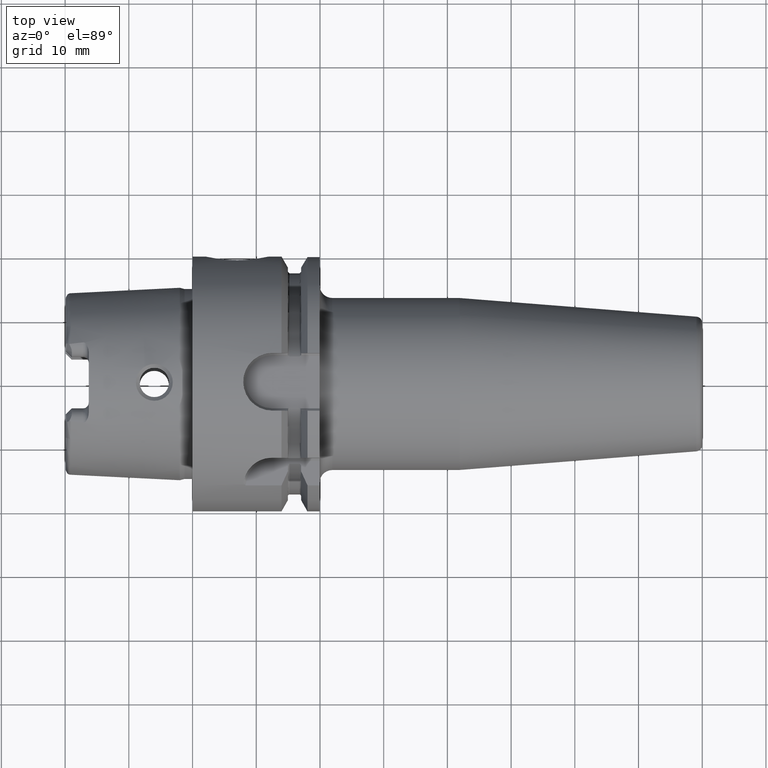
[diagram: clean part render]
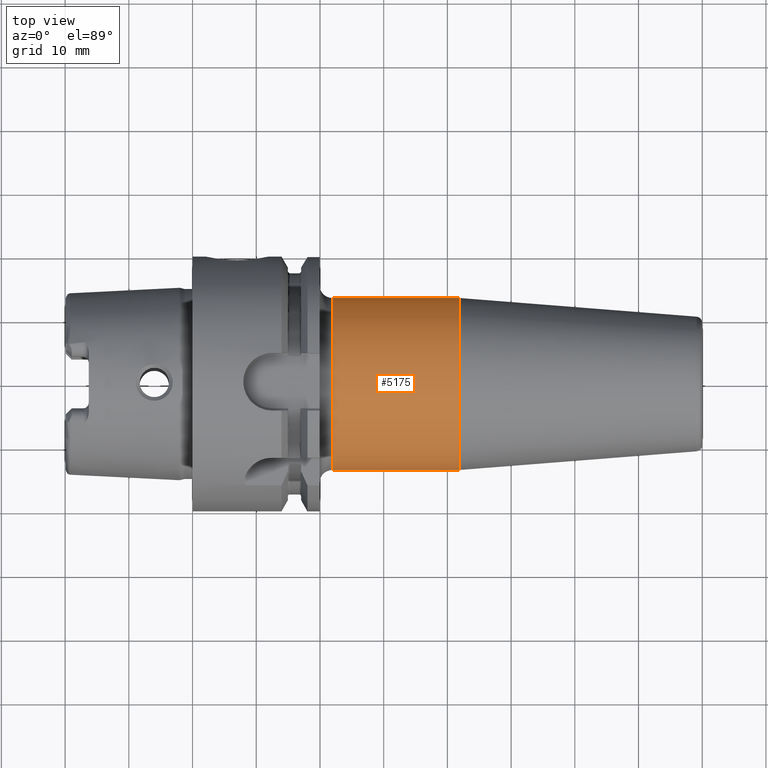
[diagram: same view with one face highlighted and labeled with its STEP entity id]
A machine part, top view. The second image highlights one B-rep face of the part: STEP entity #5175.
In plain terms, the highlighted cylindrical surface (partial cylindrical patch) has radius 13.5 mm, axis along (1, 0, 0).
Its self-contained STEP definition (entity closure, byte-faithful):
#1851=CARTESIAN_POINT('',(2.195E1,0.E0,0.E0));
#1852=DIRECTION('',(1.E0,0.E0,0.E0));
#1853=DIRECTION('',(0.E0,1.E0,0.E0));
#1854=AXIS2_PLACEMENT_3D('',#1851,#1852,#1853);
#1856=CARTESIAN_POINT('',(4.188138579148E1,0.E0,0.E0));
#1857=DIRECTION('',(1.E0,0.E0,0.E0));
#1858=DIRECTION('',(0.E0,1.E0,0.E0));
#1859=AXIS2_PLACEMENT_3D('',#1856,#1857,#1858);
#1866=DIRECTION('',(-1.E0,0.E0,-1.878068692007E-14));
#1867=VECTOR('',#1866,1.993138579148E1);
#1868=CARTESIAN_POINT('',(4.188138579148E1,-1.35E1,0.E0));
#1869=LINE('',#1868,#1867);
#1875=DIRECTION('',(-1.E0,0.E0,1.868388147799E-14));
#1876=VECTOR('',#1875,1.993138579148E1);
#1877=CARTESIAN_POINT('',(4.188138579148E1,1.35E1,0.E0));
#1878=LINE('',#1877,#1876);
#3160=CARTESIAN_POINT('',(4.188138579148E1,1.35E1,0.E0));
#3161=CARTESIAN_POINT('',(4.188138579148E1,-1.35E1,0.E0));
#3162=VERTEX_POINT('',#3160);
#3163=VERTEX_POINT('',#3161);
#3168=CARTESIAN_POINT('',(2.195E1,-1.35E1,0.E0));
#3169=CARTESIAN_POINT('',(2.195E1,1.35E1,0.E0));
#3170=VERTEX_POINT('',#3168);
#3171=VERTEX_POINT('',#3169);
#5161=CARTESIAN_POINT('',(1.69475E1,0.E0,0.E0));
#5162=DIRECTION('',(1.E0,0.E0,0.E0));
#5163=DIRECTION('',(0.E0,-1.E0,0.E0));
#5164=AXIS2_PLACEMENT_3D('',#5161,#5162,#5163);
#5165=CYLINDRICAL_SURFACE('',#5164,1.35E1);
#5166=ORIENTED_EDGE('',*,*,#5155,.F.);
#5168=ORIENTED_EDGE('',*,*,#5167,.F.);
#5170=ORIENTED_EDGE('',*,*,#5169,.T.);
#5172=ORIENTED_EDGE('',*,*,#5171,.T.);
#5173=EDGE_LOOP('',(#5166,#5168,#5170,#5172));
#5174=FACE_OUTER_BOUND('',#5173,.F.);
#5175=ADVANCED_FACE('',(#5174),#5165,.T.);
#1855=CIRCLE('',#1854,1.35E1);
#1860=CIRCLE('',#1859,1.35E1);
#5155=EDGE_CURVE('',#3171,#3170,#1855,.T.);
#5167=EDGE_CURVE('',#3162,#3171,#1878,.T.);
#5169=EDGE_CURVE('',#3162,#3163,#1860,.T.);
#5171=EDGE_CURVE('',#3163,#3170,#1869,.T.);